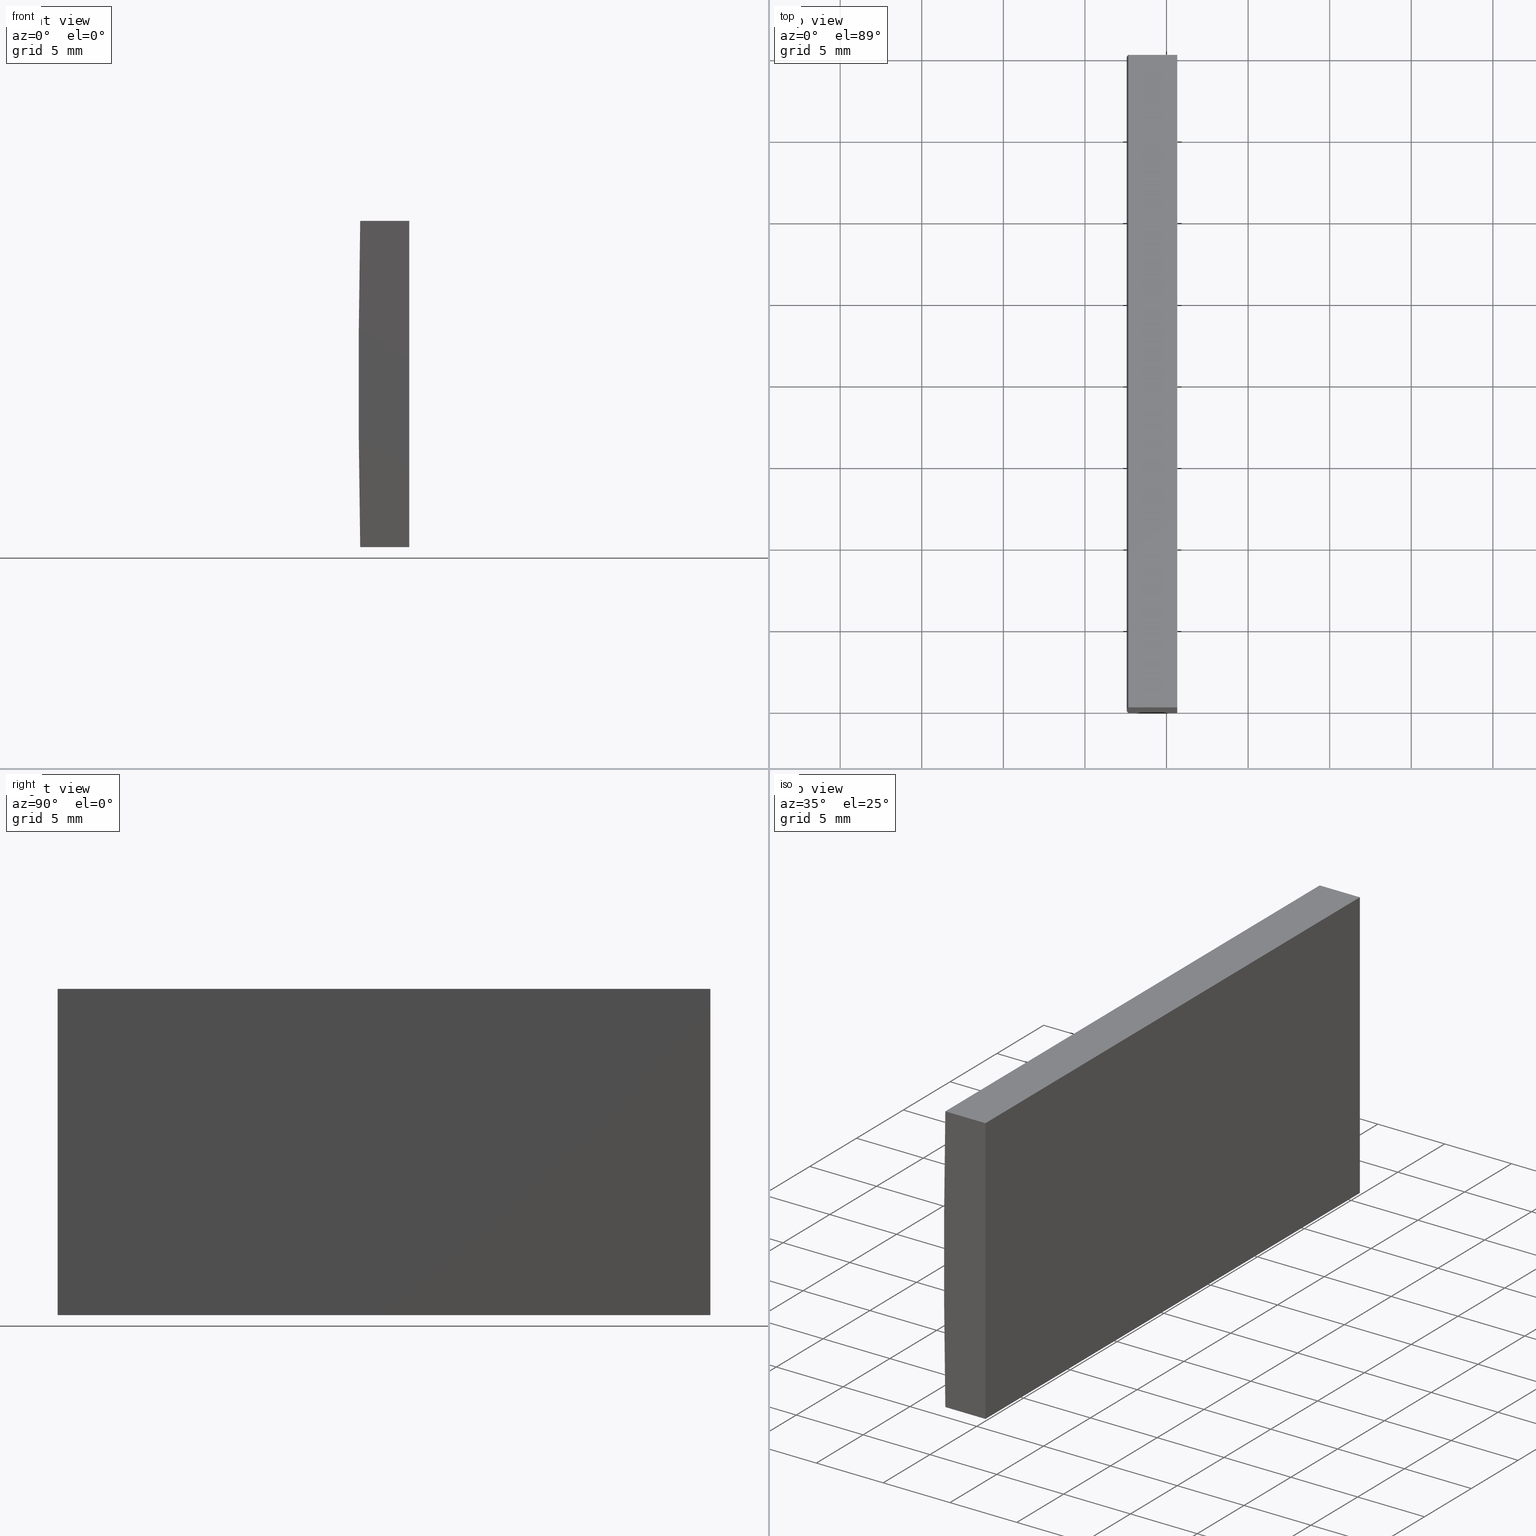
[diagram: canonical four-view strip — front | top / right | iso, engineering-drawing reading convention]
A machine part, canonical four-view strip (front | top / right | iso — engineering-drawing reading convention). The complete STEP part file that produces these views, byte-faithful:
ISO-10303-21;
HEADER;
FILE_DESCRIPTION (( 'STEP AP214' ),
    '1' );
FILE_NAME ('155055.STEP',
    '2019-06-18T06:38:48',
    ( 'user' ),
    ( '΢���й�' ),
    'SwSTEP 2.0',
    'SolidWorks 2016',
    '' );
FILE_SCHEMA (( 'AUTOMOTIVE_DESIGN' ));
ENDSEC;

DATA;
#1 = CARTESIAN_POINT ( 'NONE',  ( -512.3480373813197300, 0.0000000000000000000, 10.00000000000000000 ) ) ;
#2 = PRESENTATION_STYLE_ASSIGNMENT (( #109 ) ) ;
#3 = LINE ( 'NONE', #9, #53 ) ;
#4 = SURFACE_STYLE_FILL_AREA ( #63 ) ;
#5 = PRODUCT_DEFINITION_CONTEXT ( 'detailed design', #21, 'design' ) ;
#6 = PRESENTATION_LAYER_ASSIGNMENT (  '', '', ( #38 ) ) ;
#7 = PRODUCT ( '155055', '155055', '', ( #128 ) ) ;
#8 = DIRECTION ( 'NONE',  ( 0.0000000000000000000, -0.0000000000000000000, 1.000000000000000000 ) ) ;
#9 = CARTESIAN_POINT ( 'NONE',  ( -512.3480373813197300, 40.00000000000000000, -10.00000000000000000 ) ) ;
#10 = LINE ( 'NONE', #122, #81 ) ;
#11 = VERTEX_POINT ( 'NONE', #188 ) ;
#12 = EDGE_CURVE ( 'NONE', #121, #11, #14, .T. ) ;
#13 = CARTESIAN_POINT ( 'NONE',  ( -512.3480373813197300, 0.0000000000000000000, -10.00000000000000000 ) ) ;
#14 = CIRCLE ( 'NONE', #198, 516.7999999999998400 ) ;
#15 =( LENGTH_UNIT ( ) NAMED_UNIT ( * ) SI_UNIT ( .MILLI., .METRE. ) );
#16 = PLANE ( 'NONE',  #176 ) ;
#17 =( GEOMETRIC_REPRESENTATION_CONTEXT ( 3 ) GLOBAL_UNCERTAINTY_ASSIGNED_CONTEXT ( ( #192 ) ) GLOBAL_UNIT_ASSIGNED_CONTEXT ( ( #30, #92, #57 ) ) REPRESENTATION_CONTEXT ( 'NONE', 'WORKASPACE' ) );
#18 = PRODUCT_DEFINITION_SHAPE ( 'NONE', 'NONE',  #153 ) ;
#19 = DIRECTION ( 'NONE',  ( -0.0000000000000000000, -1.000000000000000000, -0.0000000000000000000 ) ) ;
#20 = AXIS2_PLACEMENT_3D ( 'NONE', #80, #202, #155 ) ;
#21 = APPLICATION_CONTEXT ( 'automotive_design' ) ;
#22 = LINE ( 'NONE', #138, #135 ) ;
#23 = ORIENTED_EDGE ( 'NONE', *, *, #116, .F. ) ;
#24 = CARTESIAN_POINT ( 'NONE',  ( -512.3480373813197300, 0.0000000000000000000, -10.00000000000000000 ) ) ;
#25 = SURFACE_SIDE_STYLE ('',( #4 ) ) ;
#26 = PLANE ( 'NONE',  #132 ) ;
#27 = SURFACE_STYLE_USAGE ( .BOTH. , #25 ) ;
#28 = ORIENTED_EDGE ( 'NONE', *, *, #163, .T. ) ;
#29 = ORIENTED_EDGE ( 'NONE', *, *, #165, .T. ) ;
#30 =( LENGTH_UNIT ( ) NAMED_UNIT ( * ) SI_UNIT ( .MILLI., .METRE. ) );
#31 = CARTESIAN_POINT ( 'NONE',  ( -512.3480373813197300, 40.00000000000000000, -10.00000000000000000 ) ) ;
#32 = DIRECTION ( 'NONE',  ( 0.0000000000000000000, 1.000000000000000000, 0.0000000000000000000 ) ) ;
#33 = FACE_OUTER_BOUND ( 'NONE', #100, .T. ) ;
#34 = UNCERTAINTY_MEASURE_WITH_UNIT (LENGTH_MEASURE( 1.000000000000000100E-005 ), #15, 'distance_accuracy_value', 'NONE');
#35 = CARTESIAN_POINT ( 'NONE',  ( 4.355204334851265500, 40.00000000000000000, 4.286263797015675000E-017 ) ) ;
#36 = SURFACE_SIDE_STYLE ('',( #73 ) ) ;
#37 = STYLED_ITEM ( 'NONE', ( #144 ), #160 ) ;
#38 = STYLED_ITEM ( 'NONE', ( #2 ), #40 ) ;
#39 = CARTESIAN_POINT ( 'NONE',  ( -509.3447956651486900, 0.0000000000000000000, -10.00000000000000400 ) ) ;
#40 = MANIFOLD_SOLID_BREP ( '͹̨-����1', #184 ) ;
#41 = LINE ( 'NONE', #107, #76 ) ;
#42 = EDGE_CURVE ( 'NONE', #145, #151, #111, .T. ) ;
#43 = DIRECTION ( 'NONE',  ( 0.0000000000000000000, 0.0000000000000000000, -1.000000000000000000 ) ) ;
#44 = CARTESIAN_POINT ( 'NONE',  ( -509.3447956651486900, 0.0000000000000000000, -10.00000000000000400 ) ) ;
#45 = UNCERTAINTY_MEASURE_WITH_UNIT (LENGTH_MEASURE( 1.000000000000000100E-005 ), #104, 'distance_accuracy_value', 'NONE');
#46 = MECHANICAL_DESIGN_GEOMETRIC_PRESENTATION_REPRESENTATION (  '', ( #38 ), #134 ) ;
#47 = ADVANCED_FACE ( 'NONE', ( #65 ), #87, .F. ) ;
#48 = AXIS2_PLACEMENT_3D ( 'NONE', #191, #71, #181 ) ;
#49 = CYLINDRICAL_SURFACE ( 'NONE', #48, 516.7999999999998400 ) ;
#50 = DIRECTION ( 'NONE',  ( 0.0000000000000000000, 1.000000000000000000, 0.0000000000000000000 ) ) ;
#51 = ORIENTED_EDGE ( 'NONE', *, *, #146, .F. ) ;
#52 = AXIS2_PLACEMENT_3D ( 'NONE', #98, #43, #178 ) ;
#53 = VECTOR ( 'NONE', #62, 1000.000000000000000 ) ;
#54 = VECTOR ( 'NONE', #159, 1000.000000000000000 ) ;
#55 = ORIENTED_EDGE ( 'NONE', *, *, #99, .T. ) ;
#56 = AXIS2_PLACEMENT_3D ( 'NONE', #197, #102, #86 ) ;
#57 =( NAMED_UNIT ( * ) SI_UNIT ( $, .STERADIAN. ) SOLID_ANGLE_UNIT ( ) );
#58 = FACE_OUTER_BOUND ( 'NONE', #199, .T. ) ;
#59 = LINE ( 'NONE', #82, #84 ) ;
#60 = PRESENTATION_LAYER_ASSIGNMENT (  '', '', ( #37 ) ) ;
#61 = CARTESIAN_POINT ( 'NONE',  ( -509.3447956651486900, 40.00000000000000000, -10.00000000000000400 ) ) ;
#62 = DIRECTION ( 'NONE',  ( -0.0000000000000000000, -1.000000000000000000, -0.0000000000000000000 ) ) ;
#63 = FILL_AREA_STYLE ('',( #94 ) ) ;
#64 = CIRCLE ( 'NONE', #20, 516.7999999999998400 ) ;
#65 = FACE_OUTER_BOUND ( 'NONE', #124, .T. ) ;
#66 = ORIENTED_EDGE ( 'NONE', *, *, #42, .F. ) ;
#67 = ORIENTED_EDGE ( 'NONE', *, *, #163, .F. ) ;
#68 = DIRECTION ( 'NONE',  ( 0.0000000000000000000, 1.000000000000000000, 0.0000000000000000000 ) ) ;
#69 = LINE ( 'NONE', #24, #54 ) ;
#70 = LINE ( 'NONE', #44, #139 ) ;
#71 = DIRECTION ( 'NONE',  ( -0.0000000000000000000, -1.000000000000000000, -0.0000000000000000000 ) ) ;
#72 = DIRECTION ( 'NONE',  ( 0.0000000000000000000, 0.0000000000000000000, 1.000000000000000000 ) ) ;
#73 = SURFACE_STYLE_FILL_AREA ( #106 ) ;
#74 = DIRECTION ( 'NONE',  ( 0.0000000000000000000, 0.0000000000000000000, 1.000000000000000000 ) ) ;
#75 = ADVANCED_FACE ( 'NONE', ( #193 ), #26, .F. ) ;
#76 = VECTOR ( 'NONE', #88, 1000.000000000000000 ) ;
#77 = MECHANICAL_DESIGN_GEOMETRIC_PRESENTATION_REPRESENTATION (  '', ( #37 ), #17 ) ;
#78 = DIRECTION ( 'NONE',  ( 0.0000000000000000000, -0.0000000000000000000, 1.000000000000000000 ) ) ;
#79 = DIRECTION ( 'NONE',  ( 1.000000000000000000, 0.0000000000000000000, 0.0000000000000000000 ) ) ;
#80 = CARTESIAN_POINT ( 'NONE',  ( 4.355204334851265500, 0.0000000000000000000, 4.286263797015675000E-017 ) ) ;
#81 = VECTOR ( 'NONE', #118, 1000.000000000000000 ) ;
#82 = CARTESIAN_POINT ( 'NONE',  ( -509.3447956651486900, 40.00000000000000000, -10.00000000000000400 ) ) ;
#83 = EDGE_CURVE ( 'NONE', #11, #97, #201, .T. ) ;
#84 = VECTOR ( 'NONE', #141, 1000.000000000000000 ) ;
#85 =( NAMED_UNIT ( * ) PLANE_ANGLE_UNIT ( ) SI_UNIT ( $, .RADIAN. ) );
#86 = DIRECTION ( 'NONE',  ( 1.000000000000000000, 0.0000000000000000000, -1.155234003734118200E-015 ) ) ;
#87 = PLANE ( 'NONE',  #52 ) ;
#88 = DIRECTION ( 'NONE',  ( -0.0000000000000000000, -1.000000000000000000, -0.0000000000000000000 ) ) ;
#89 = EDGE_CURVE ( 'NONE', #131, #171, #69, .T. ) ;
#90 = VECTOR ( 'NONE', #79, 1000.000000000000000 ) ;
#91 = DIRECTION ( 'NONE',  ( -1.000000000000000000, 0.0000000000000000000, 0.0000000000000000000 ) ) ;
#92 =( NAMED_UNIT ( * ) PLANE_ANGLE_UNIT ( ) SI_UNIT ( $, .RADIAN. ) );
#93 = FACE_OUTER_BOUND ( 'NONE', #136, .T. ) ;
#94 = FILL_AREA_STYLE_COLOUR ( '', #105 ) ;
#95 = DIRECTION ( 'NONE',  ( 0.0000000000000000000, 0.0000000000000000000, 1.000000000000000000 ) ) ;
#96 = COLOUR_RGB ( '',1.000000000000000000, 1.000000000000000000, 1.000000000000000000 ) ;
#97 = VERTEX_POINT ( 'NONE', #200 ) ;
#98 = CARTESIAN_POINT ( 'NONE',  ( -512.3480373813197300, 40.00000000000000000, 10.00000000000000000 ) ) ;
#99 = EDGE_CURVE ( 'NONE', #11, #145, #41, .T. ) ;
#100 = EDGE_LOOP ( 'NONE', ( #164, #175, #23, #66 ) ) ;
#101 = ORIENTED_EDGE ( 'NONE', *, *, #180, .T. ) ;
#102 = DIRECTION ( 'NONE',  ( 1.155234003734118200E-015, -0.0000000000000000000, 1.000000000000000000 ) ) ;
#103 = ORIENTED_EDGE ( 'NONE', *, *, #12, .T. ) ;
#104 =( LENGTH_UNIT ( ) NAMED_UNIT ( * ) SI_UNIT ( .MILLI., .METRE. ) );
#105 = COLOUR_RGB ( '',1.000000000000000000, 1.000000000000000000, 1.000000000000000000 ) ;
#106 = FILL_AREA_STYLE ('',( #187 ) ) ;
#107 = CARTESIAN_POINT ( 'NONE',  ( -512.3480373813197300, 40.00000000000000000, 10.00000000000000000 ) ) ;
#108 = PLANE ( 'NONE',  #117 ) ;
#109 = SURFACE_STYLE_USAGE ( .BOTH. , #36 ) ;
#110 = VECTOR ( 'NONE', #156, 1000.000000000000000 ) ;
#111 = LINE ( 'NONE', #162, #90 ) ;
#112 = ORIENTED_EDGE ( 'NONE', *, *, #42, .T. ) ;
#113 =( GEOMETRIC_REPRESENTATION_CONTEXT ( 3 ) GLOBAL_UNCERTAINTY_ASSIGNED_CONTEXT ( ( #34 ) ) GLOBAL_UNIT_ASSIGNED_CONTEXT ( ( #15, #195, #142 ) ) REPRESENTATION_CONTEXT ( 'NONE', 'WORKASPACE' ) );
#114 = DIRECTION ( 'NONE',  ( -0.0000000000000000000, -0.0000000000000000000, -1.000000000000000000 ) ) ;
#115 = ORIENTED_EDGE ( 'NONE', *, *, #89, .T. ) ;
#116 = EDGE_CURVE ( 'NONE', #151, #131, #70, .T. ) ;
#117 = AXIS2_PLACEMENT_3D ( 'NONE', #35, #50, #8 ) ;
#118 = DIRECTION ( 'NONE',  ( -0.0000000000000000000, -1.000000000000000000, -0.0000000000000000000 ) ) ;
#119 = PRODUCT_RELATED_PRODUCT_CATEGORY ( 'part', '', ( #7 ) ) ;
#120 = APPLICATION_PROTOCOL_DEFINITION ( 'draft international standard', 'automotive_design', 1998, #21 ) ;
#121 = VERTEX_POINT ( 'NONE', #31 ) ;
#122 = CARTESIAN_POINT ( 'NONE',  ( -509.3447956651486900, 40.00000000000000000, 10.00000000000000000 ) ) ;
#123 = PRODUCT_DEFINITION_FORMATION_WITH_SPECIFIED_SOURCE ( '�κ�', '', #7, .NOT_KNOWN. ) ;
#124 = EDGE_LOOP ( 'NONE', ( #112, #173, #161, #55 ) ) ;
#125 = ORIENTED_EDGE ( 'NONE', *, *, #83, .T. ) ;
#126 = FACE_OUTER_BOUND ( 'NONE', #190, .T. ) ;
#127 = EDGE_CURVE ( 'NONE', #97, #151, #10, .T. ) ;
#128 = PRODUCT_CONTEXT ( 'NONE', #157, 'mechanical' ) ;
#129 = CARTESIAN_POINT ( 'NONE',  ( 4.355204334851265500, 0.0000000000000000000, 4.286263797015675000E-017 ) ) ;
#130 = ADVANCED_FACE ( 'NONE', ( #58 ), #49, .T. ) ;
#131 = VERTEX_POINT ( 'NONE', #39 ) ;
#132 = AXIS2_PLACEMENT_3D ( 'NONE', #154, #91, #74 ) ;
#133 = DIRECTION ( 'NONE',  ( 1.000000000000000000, 0.0000000000000000000, 0.0000000000000000000 ) ) ;
#134 =( GEOMETRIC_REPRESENTATION_CONTEXT ( 3 ) GLOBAL_UNCERTAINTY_ASSIGNED_CONTEXT ( ( #45 ) ) GLOBAL_UNIT_ASSIGNED_CONTEXT ( ( #104, #85, #137 ) ) REPRESENTATION_CONTEXT ( 'NONE', 'WORKASPACE' ) );
#135 = VECTOR ( 'NONE', #19, 1000.000000000000000 ) ;
#136 = EDGE_LOOP ( 'NONE', ( #103, #125, #182, #185 ) ) ;
#137 =( NAMED_UNIT ( * ) SI_UNIT ( $, .STERADIAN. ) SOLID_ANGLE_UNIT ( ) );
#138 = CARTESIAN_POINT ( 'NONE',  ( -509.3447956651486900, 40.00000000000000000, -10.00000000000000400 ) ) ;
#139 = VECTOR ( 'NONE', #114, 1000.000000000000000 ) ;
#140 = EDGE_LOOP ( 'NONE', ( #183, #169, #51, #186 ) ) ;
#141 = DIRECTION ( 'NONE',  ( -0.0000000000000000000, -0.0000000000000000000, -1.000000000000000000 ) ) ;
#142 =( NAMED_UNIT ( * ) SI_UNIT ( $, .STERADIAN. ) SOLID_ANGLE_UNIT ( ) );
#143 = ORIENTED_EDGE ( 'NONE', *, *, #203, .F. ) ;
#144 = PRESENTATION_STYLE_ASSIGNMENT (( #27 ) ) ;
#145 = VERTEX_POINT ( 'NONE', #1 ) ;
#146 = EDGE_CURVE ( 'NONE', #97, #179, #59, .T. ) ;
#147 = AXIS2_PLACEMENT_3D ( 'NONE', #194, #72, #133 ) ;
#148 = CARTESIAN_POINT ( 'NONE',  ( -512.3480373813197300, 40.00000000000000000, 10.00000000000000000 ) ) ;
#149 = ADVANCED_FACE ( 'NONE', ( #126 ), #167, .F. ) ;
#150 = DIRECTION ( 'NONE',  ( -1.000000000000000000, -0.0000000000000000000, 1.155234003734118200E-015 ) ) ;
#151 = VERTEX_POINT ( 'NONE', #189 ) ;
#152 = SHAPE_DEFINITION_REPRESENTATION ( #18, #160 ) ;
#153 = PRODUCT_DEFINITION ( 'δ֪', '', #123, #5 ) ;
#154 = CARTESIAN_POINT ( 'NONE',  ( -509.3447956651486900, 40.00000000000000000, -10.00000000000000400 ) ) ;
#155 = DIRECTION ( 'NONE',  ( 0.0000000000000000000, 0.0000000000000000000, 1.000000000000000000 ) ) ;
#156 = DIRECTION ( 'NONE',  ( 1.000000000000000000, 0.0000000000000000000, 0.0000000000000000000 ) ) ;
#157 = APPLICATION_CONTEXT ( 'automotive_design' ) ;
#158 = ORIENTED_EDGE ( 'NONE', *, *, #99, .F. ) ;
#159 = DIRECTION ( 'NONE',  ( -1.000000000000000000, -0.0000000000000000000, 1.155234003734118200E-015 ) ) ;
#160 = ADVANCED_BREP_SHAPE_REPRESENTATION ( '155055', ( #40, #147 ), #113 ) ;
#161 = ORIENTED_EDGE ( 'NONE', *, *, #83, .F. ) ;
#162 = CARTESIAN_POINT ( 'NONE',  ( -512.3480373813197300, 0.0000000000000000000, 10.00000000000000000 ) ) ;
#163 = EDGE_CURVE ( 'NONE', #121, #171, #3, .T. ) ;
#164 = ORIENTED_EDGE ( 'NONE', *, *, #180, .F. ) ;
#165 = EDGE_CURVE ( 'NONE', #179, #131, #22, .T. ) ;
#166 = VECTOR ( 'NONE', #150, 1000.000000000000000 ) ;
#167 = PLANE ( 'NONE',  #56 ) ;
#168 = ADVANCED_FACE ( 'NONE', ( #93 ), #108, .T. ) ;
#169 = ORIENTED_EDGE ( 'NONE', *, *, #165, .F. ) ;
#170 = ADVANCED_FACE ( 'NONE', ( #33 ), #16, .F. ) ;
#171 = VERTEX_POINT ( 'NONE', #13 ) ;
#172 = APPLICATION_PROTOCOL_DEFINITION ( 'draft international standard', 'automotive_design', 1998, #157 ) ;
#173 = ORIENTED_EDGE ( 'NONE', *, *, #127, .F. ) ;
#174 = CARTESIAN_POINT ( 'NONE',  ( -512.3480373813197300, 40.00000000000000000, -10.00000000000000000 ) ) ;
#175 = ORIENTED_EDGE ( 'NONE', *, *, #89, .F. ) ;
#176 = AXIS2_PLACEMENT_3D ( 'NONE', #129, #68, #78 ) ;
#177 = LINE ( 'NONE', #174, #166 ) ;
#178 = DIRECTION ( 'NONE',  ( -1.000000000000000000, 0.0000000000000000000, -0.0000000000000000000 ) ) ;
#179 = VERTEX_POINT ( 'NONE', #61 ) ;
#180 = EDGE_CURVE ( 'NONE', #171, #145, #64, .T. ) ;
#181 = DIRECTION ( 'NONE',  ( 0.0000000000000000000, 0.0000000000000000000, -1.000000000000000000 ) ) ;
#182 = ORIENTED_EDGE ( 'NONE', *, *, #146, .T. ) ;
#183 = ORIENTED_EDGE ( 'NONE', *, *, #116, .T. ) ;
#184 = CLOSED_SHELL ( 'NONE', ( #130, #47, #75, #149, #168, #170 ) ) ;
#185 = ORIENTED_EDGE ( 'NONE', *, *, #203, .T. ) ;
#186 = ORIENTED_EDGE ( 'NONE', *, *, #127, .T. ) ;
#187 = FILL_AREA_STYLE_COLOUR ( '', #96 ) ;
#188 = CARTESIAN_POINT ( 'NONE',  ( -512.3480373813197300, 40.00000000000000000, 10.00000000000000000 ) ) ;
#189 = CARTESIAN_POINT ( 'NONE',  ( -509.3447956651486900, 0.0000000000000000000, 10.00000000000000000 ) ) ;
#190 = EDGE_LOOP ( 'NONE', ( #115, #67, #143, #29 ) ) ;
#191 = CARTESIAN_POINT ( 'NONE',  ( 4.355204334851265500, 40.00000000000000000, 4.286263797015675000E-017 ) ) ;
#192 = UNCERTAINTY_MEASURE_WITH_UNIT (LENGTH_MEASURE( 1.000000000000000100E-005 ), #30, 'distance_accuracy_value', 'NONE');
#193 = FACE_OUTER_BOUND ( 'NONE', #140, .T. ) ;
#194 = CARTESIAN_POINT ( 'NONE',  ( 0.0000000000000000000, 0.0000000000000000000, 0.0000000000000000000 ) ) ;
#195 =( NAMED_UNIT ( * ) PLANE_ANGLE_UNIT ( ) SI_UNIT ( $, .RADIAN. ) );
#196 = CARTESIAN_POINT ( 'NONE',  ( 4.355204334851265500, 40.00000000000000000, 4.286263797015675000E-017 ) ) ;
#197 = CARTESIAN_POINT ( 'NONE',  ( -512.3480373813197300, 40.00000000000000000, -10.00000000000000000 ) ) ;
#198 = AXIS2_PLACEMENT_3D ( 'NONE', #196, #32, #95 ) ;
#199 = EDGE_LOOP ( 'NONE', ( #101, #158, #204, #28 ) ) ;
#200 = CARTESIAN_POINT ( 'NONE',  ( -509.3447956651486900, 40.00000000000000000, 10.00000000000000000 ) ) ;
#201 = LINE ( 'NONE', #148, #110 ) ;
#202 = DIRECTION ( 'NONE',  ( 0.0000000000000000000, 1.000000000000000000, 0.0000000000000000000 ) ) ;
#203 = EDGE_CURVE ( 'NONE', #179, #121, #177, .T. ) ;
#204 = ORIENTED_EDGE ( 'NONE', *, *, #12, .F. ) ;
ENDSEC;
END-ISO-10303-21;
